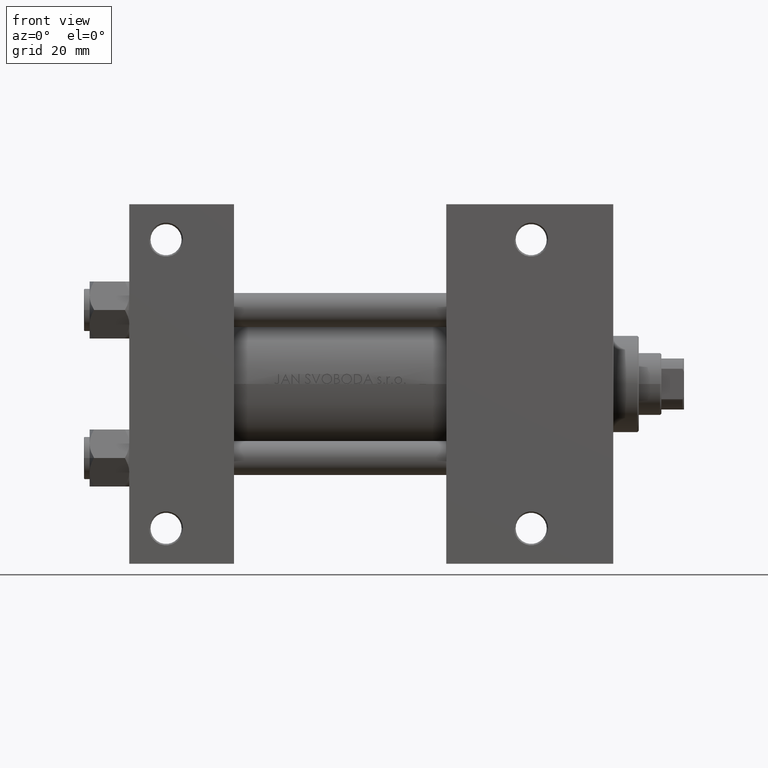
[diagram: clean part render]
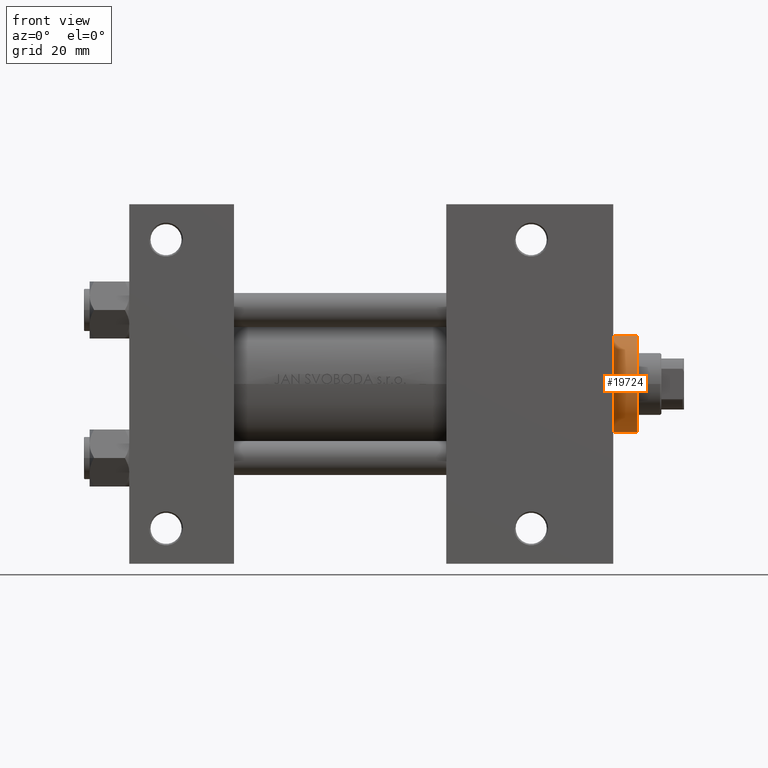
[diagram: same view with one face highlighted and labeled with its STEP entity id]
A machine part, front view. The second image highlights one B-rep face of the part: STEP entity #19724.
In plain terms, the highlighted cylindrical surface (partial cylindrical patch) has radius 17 mm, axis along (-1, -0, 0).
Its self-contained STEP definition (entity closure, byte-faithful):
#595 = VERTEX_POINT ( 'NONE', #13985 ) ;
#631 = LINE ( 'NONE', #42472, #10702 ) ;
#793 = CYLINDRICAL_SURFACE ( 'NONE', #8735, 17.00000000000000000 ) ;
#3529 = CARTESIAN_POINT ( 'NONE',  ( 0.000000000000000000, 0.000000000000000000, 28.69999999999999929 ) ) ;
#5288 = DIRECTION ( 'NONE',  ( -0.000000000000000000, -0.000000000000000000, -1.000000000000000000 ) ) ;
#5537 = FACE_OUTER_BOUND ( 'NONE', #10114, .T. ) ;
#5701 = DIRECTION ( 'NONE',  ( 0.000000000000000000, 0.000000000000000000, -1.000000000000000000 ) ) ;
#8034 = CARTESIAN_POINT ( 'NONE',  ( -17.00000000000000000, 0.000000000000000000, 37.19999999999999574 ) ) ;
#8735 = AXIS2_PLACEMENT_3D ( 'NONE', #39897, #5288, #39406 ) ;
#9653 = AXIS2_PLACEMENT_3D ( 'NONE', #3529, #13140, #28305 ) ;
#9676 = EDGE_CURVE ( 'NONE', #45799, #21624, #22557, .T. ) ;
#10114 = EDGE_LOOP ( 'NONE', ( #20775, #46164, #30110, #45176 ) ) ;
#10702 = VECTOR ( 'NONE', #20069, 1000.000000000000000 ) ;
#10827 = VERTEX_POINT ( 'NONE', #14274 ) ;
#13140 = DIRECTION ( 'NONE',  ( 0.000000000000000000, 0.000000000000000000, 1.000000000000000000 ) ) ;
#13985 = CARTESIAN_POINT ( 'NONE',  ( 17.00000000000000000, 2.081899558550500280E-15, 28.69999999999999929 ) ) ;
#14274 = CARTESIAN_POINT ( 'NONE',  ( 17.00000000000000000, 2.081899558550500280E-15, 37.19999999999999574 ) ) ;
#15345 = CARTESIAN_POINT ( 'NONE',  ( -17.00000000000000000, 0.000000000000000000, 37.69999999999999574 ) ) ;
#19724 = ADVANCED_FACE ( 'NONE', ( #5537 ), #793, .T. ) ;
#20069 = DIRECTION ( 'NONE',  ( -0.000000000000000000, -0.000000000000000000, -1.000000000000000000 ) ) ;
#20775 = ORIENTED_EDGE ( 'NONE', *, *, #38100, .F. ) ;
#21624 = VERTEX_POINT ( 'NONE', #34362 ) ;
#22557 = LINE ( 'NONE', #15345, #41885 ) ;
#27877 = EDGE_CURVE ( 'NONE', #21624, #595, #44642, .T. ) ;
#28305 = DIRECTION ( 'NONE',  ( 1.000000000000000000, 0.000000000000000000, 0.000000000000000000 ) ) ;
#28446 = EDGE_CURVE ( 'NONE', #10827, #45799, #37493, .T. ) ;
#28766 = AXIS2_PLACEMENT_3D ( 'NONE', #32332, #5701, #39073 ) ;
#30110 = ORIENTED_EDGE ( 'NONE', *, *, #9676, .T. ) ;
#32332 = CARTESIAN_POINT ( 'NONE',  ( 0.000000000000000000, 0.000000000000000000, 37.19999999999999574 ) ) ;
#34362 = CARTESIAN_POINT ( 'NONE',  ( -17.00000000000000000, 0.000000000000000000, 28.69999999999999929 ) ) ;
#37493 = CIRCLE ( 'NONE', #28766, 17.00000000000000000 ) ;
#38100 = EDGE_CURVE ( 'NONE', #10827, #595, #631, .T. ) ;
#39073 = DIRECTION ( 'NONE',  ( 1.000000000000000000, 0.000000000000000000, 0.000000000000000000 ) ) ;
#39406 = DIRECTION ( 'NONE',  ( -1.000000000000000000, 0.000000000000000000, 0.000000000000000000 ) ) ;
#39897 = CARTESIAN_POINT ( 'NONE',  ( 0.000000000000000000, 0.000000000000000000, 37.69999999999999574 ) ) ;
#41885 = VECTOR ( 'NONE', #49193, 1000.000000000000000 ) ;
#42472 = CARTESIAN_POINT ( 'NONE',  ( 17.00000000000000000, 2.081899558550500280E-15, 37.69999999999999574 ) ) ;
#44642 = CIRCLE ( 'NONE', #9653, 17.00000000000000000 ) ;
#45176 = ORIENTED_EDGE ( 'NONE', *, *, #27877, .T. ) ;
#45799 = VERTEX_POINT ( 'NONE', #8034 ) ;
#46164 = ORIENTED_EDGE ( 'NONE', *, *, #28446, .T. ) ;
#49193 = DIRECTION ( 'NONE',  ( -0.000000000000000000, -0.000000000000000000, -1.000000000000000000 ) ) ;